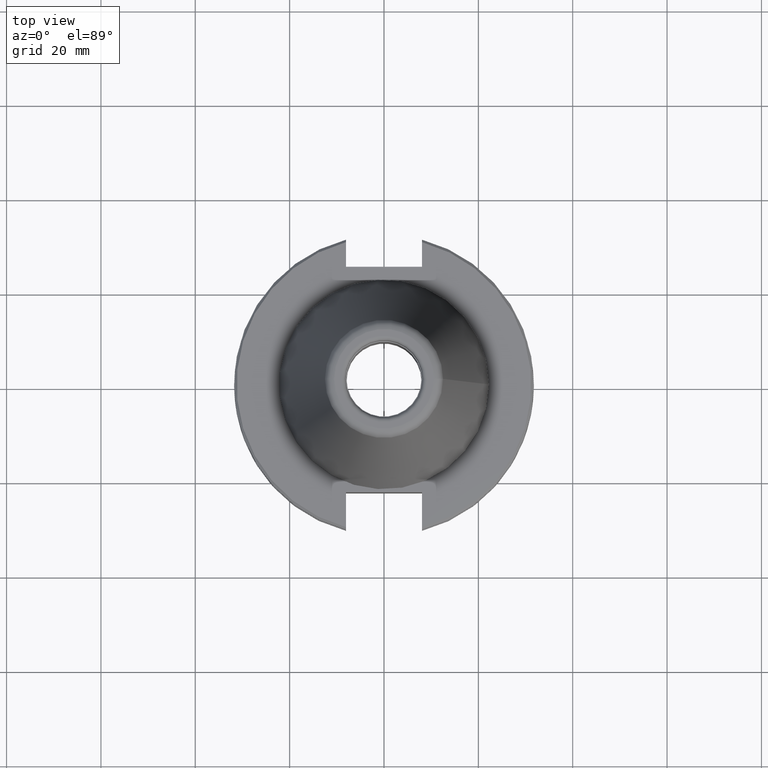
[diagram: clean part render]
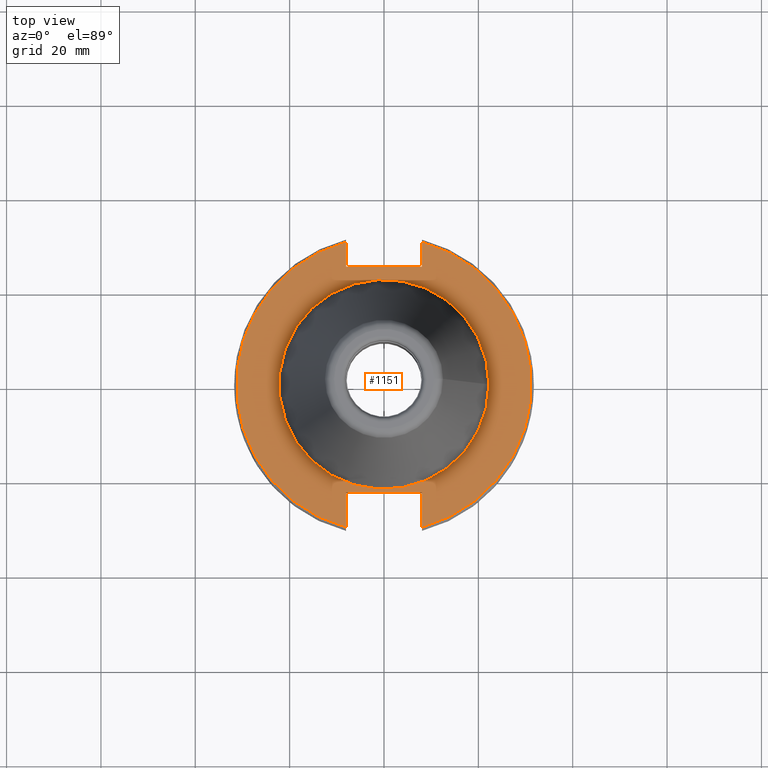
[diagram: same view with one face highlighted and labeled with its STEP entity id]
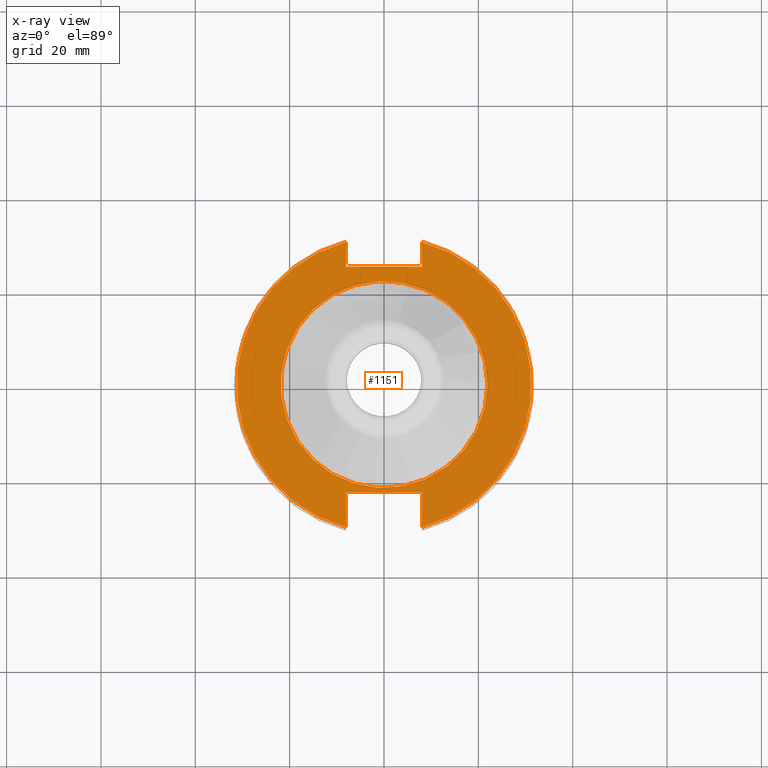
[diagram: x-ray of the same camera — body ghosted, the highlighted face saturated]
A machine part, top view. The second image highlights one B-rep face of the part: STEP entity #1151.
The next image is the same camera in x-ray: the body ghosted, the highlighted face saturated — about 0% of this face is hidden behind the body in this view.
In plain terms, the highlighted planar face has unit normal (0, 0, -1).
Its self-contained STEP definition (entity closure, byte-faithful):
#81 = CARTESIAN_POINT ( 'NONE',  ( -8.050000000000000711, 25.00000000000000000, -3.180000000000016147 ) ) ;
#83 = LINE ( 'NONE', #419, #1017 ) ;
#96 = CARTESIAN_POINT ( 'NONE',  ( -8.050000000000000711, -30.22123632480973043, -3.180000000000016147 ) ) ;
#100 = VERTEX_POINT ( 'NONE', #1210 ) ;
#103 = VERTEX_POINT ( 'NONE', #96 ) ;
#116 = LINE ( 'NONE', #672, #1841 ) ;
#158 = CIRCLE ( 'NONE', #746, 21.92500000000000071 ) ;
#199 = AXIS2_PLACEMENT_3D ( 'NONE', #1705, #1060, #899 ) ;
#237 = ORIENTED_EDGE ( 'NONE', *, *, #1232, .T. ) ;
#239 = CARTESIAN_POINT ( 'NONE',  ( 21.92500000000000071, 0.0000000000000000000, -3.180000000000016147 ) ) ;
#303 = CARTESIAN_POINT ( 'NONE',  ( 8.050000000000000711, 30.22123632480973043, -3.180000000000016147 ) ) ;
#335 = DIRECTION ( 'NONE',  ( 1.000000000000000000, 0.0000000000000000000, 0.0000000000000000000 ) ) ;
#357 = CARTESIAN_POINT ( 'NONE',  ( 8.050000000000000711, -22.80000000000000071, -3.180000000000016147 ) ) ;
#365 = EDGE_CURVE ( 'NONE', #895, #796, #446, .T. ) ;
#419 = CARTESIAN_POINT ( 'NONE',  ( 8.050000000000002487, 31.27499999999998437, -3.180000000000016147 ) ) ;
#446 = LINE ( 'NONE', #1888, #1085 ) ;
#502 = EDGE_CURVE ( 'NONE', #103, #895, #2029, .T. ) ;
#519 = AXIS2_PLACEMENT_3D ( 'NONE', #2011, #1688, #767 ) ;
#522 = EDGE_LOOP ( 'NONE', ( #1587 ) ) ;
#577 = CARTESIAN_POINT ( 'NONE',  ( -8.050000000000000711, 31.27499999999998437, -3.180000000000016147 ) ) ;
#623 = EDGE_CURVE ( 'NONE', #785, #785, #158, .T. ) ;
#649 = LINE ( 'NONE', #903, #1282 ) ;
#672 = CARTESIAN_POINT ( 'NONE',  ( 8.050000000000000711, 31.27499999999998437, -3.180000000000016147 ) ) ;
#719 = EDGE_CURVE ( 'NONE', #1258, #1788, #116, .T. ) ;
#731 = DIRECTION ( 'NONE',  ( -1.000000000000000000, 0.0000000000000000000, 0.0000000000000000000 ) ) ;
#743 = VERTEX_POINT ( 'NONE', #1285 ) ;
#746 = AXIS2_PLACEMENT_3D ( 'NONE', #808, #1880, #1269 ) ;
#767 = DIRECTION ( 'NONE',  ( -1.000000000000000000, 0.0000000000000000000, -0.0000000000000000000 ) ) ;
#785 = VERTEX_POINT ( 'NONE', #239 ) ;
#791 = ORIENTED_EDGE ( 'NONE', *, *, #1809, .T. ) ;
#796 = VERTEX_POINT ( 'NONE', #357 ) ;
#808 = CARTESIAN_POINT ( 'NONE',  ( 0.0000000000000000000, 0.0000000000000000000, -3.180000000000016147 ) ) ;
#813 = AXIS2_PLACEMENT_3D ( 'NONE', #1406, #1878, #335 ) ;
#882 = CARTESIAN_POINT ( 'NONE',  ( 8.050000000000000711, 25.00000000000000000, -3.180000000000016147 ) ) ;
#895 = VERTEX_POINT ( 'NONE', #1785 ) ;
#899 = DIRECTION ( 'NONE',  ( 1.000000000000000000, 0.0000000000000000000, 0.0000000000000000000 ) ) ;
#903 = CARTESIAN_POINT ( 'NONE',  ( 0.0000000000000000000, 25.00000000000000000, -3.180000000000016147 ) ) ;
#955 = CIRCLE ( 'NONE', #199, 31.27499999999998437 ) ;
#1013 = EDGE_CURVE ( 'NONE', #796, #100, #83, .T. ) ;
#1017 = VECTOR ( 'NONE', #1055, 1000.000000000000000 ) ;
#1020 = ORIENTED_EDGE ( 'NONE', *, *, #365, .T. ) ;
#1055 = DIRECTION ( 'NONE',  ( -7.912572472363517554E-17, -1.000000000000000000, 0.0000000000000000000 ) ) ;
#1060 = DIRECTION ( 'NONE',  ( -0.0000000000000000000, -0.0000000000000000000, 1.000000000000000000 ) ) ;
#1085 = VECTOR ( 'NONE', #2041, 1000.000000000000000 ) ;
#1151 = ADVANCED_FACE ( 'NONE', ( #1953, #1931 ), #1682, .F. ) ;
#1182 = DIRECTION ( 'NONE',  ( -7.912572472363517554E-17, 1.000000000000000000, 0.0000000000000000000 ) ) ;
#1192 = ORIENTED_EDGE ( 'NONE', *, *, #502, .T. ) ;
#1210 = CARTESIAN_POINT ( 'NONE',  ( 8.050000000000000711, -30.22123632480973043, -3.180000000000016147 ) ) ;
#1232 = EDGE_CURVE ( 'NONE', #743, #103, #955, .T. ) ;
#1258 = VERTEX_POINT ( 'NONE', #303 ) ;
#1269 = DIRECTION ( 'NONE',  ( 1.000000000000000000, 0.0000000000000000000, 0.0000000000000000000 ) ) ;
#1282 = VECTOR ( 'NONE', #731, 1000.000000000000000 ) ;
#1285 = CARTESIAN_POINT ( 'NONE',  ( -8.050000000000000711, 30.22123632480973043, -3.180000000000016147 ) ) ;
#1338 = VECTOR ( 'NONE', #1182, 1000.000000000000000 ) ;
#1363 = DIRECTION ( 'NONE',  ( 0.0000000000000000000, 1.000000000000000000, 0.0000000000000000000 ) ) ;
#1368 = EDGE_CURVE ( 'NONE', #100, #1258, #1392, .T. ) ;
#1392 = CIRCLE ( 'NONE', #813, 31.27499999999998437 ) ;
#1406 = CARTESIAN_POINT ( 'NONE',  ( 0.0000000000000000000, 0.0000000000000000000, -3.180000000000016147 ) ) ;
#1413 = EDGE_CURVE ( 'NONE', #1788, #1796, #649, .T. ) ;
#1528 = ORIENTED_EDGE ( 'NONE', *, *, #1013, .T. ) ;
#1542 = VECTOR ( 'NONE', #1363, 1000.000000000000000 ) ;
#1587 = ORIENTED_EDGE ( 'NONE', *, *, #623, .F. ) ;
#1591 = CARTESIAN_POINT ( 'NONE',  ( -8.050000000000002487, 31.27499999999998437, -3.180000000000016147 ) ) ;
#1608 = DIRECTION ( 'NONE',  ( 0.0000000000000000000, -1.000000000000000000, 0.0000000000000000000 ) ) ;
#1617 = ORIENTED_EDGE ( 'NONE', *, *, #719, .T. ) ;
#1682 = PLANE ( 'NONE',  #519 ) ;
#1688 = DIRECTION ( 'NONE',  ( 0.0000000000000000000, 0.0000000000000000000, -1.000000000000000000 ) ) ;
#1705 = CARTESIAN_POINT ( 'NONE',  ( 0.0000000000000000000, 0.0000000000000000000, -3.180000000000016147 ) ) ;
#1746 = EDGE_LOOP ( 'NONE', ( #1824, #791, #237, #1192, #1020, #1528, #1845, #1617 ) ) ;
#1785 = CARTESIAN_POINT ( 'NONE',  ( -8.050000000000000711, -22.80000000000000071, -3.180000000000016147 ) ) ;
#1788 = VERTEX_POINT ( 'NONE', #882 ) ;
#1796 = VERTEX_POINT ( 'NONE', #81 ) ;
#1809 = EDGE_CURVE ( 'NONE', #1796, #743, #1859, .T. ) ;
#1824 = ORIENTED_EDGE ( 'NONE', *, *, #1413, .T. ) ;
#1841 = VECTOR ( 'NONE', #1608, 1000.000000000000000 ) ;
#1845 = ORIENTED_EDGE ( 'NONE', *, *, #1368, .T. ) ;
#1859 = LINE ( 'NONE', #577, #1542 ) ;
#1878 = DIRECTION ( 'NONE',  ( -0.0000000000000000000, -0.0000000000000000000, 1.000000000000000000 ) ) ;
#1880 = DIRECTION ( 'NONE',  ( -0.0000000000000000000, -0.0000000000000000000, 1.000000000000000000 ) ) ;
#1888 = CARTESIAN_POINT ( 'NONE',  ( 0.0000000000000000000, -22.80000000000000071, -3.180000000000016147 ) ) ;
#1931 = FACE_OUTER_BOUND ( 'NONE', #1746, .T. ) ;
#1953 = FACE_BOUND ( 'NONE', #522, .T. ) ;
#2011 = CARTESIAN_POINT ( 'NONE',  ( 0.0000000000000000000, 31.27499999999998437, -3.180000000000016147 ) ) ;
#2029 = LINE ( 'NONE', #1591, #1338 ) ;
#2041 = DIRECTION ( 'NONE',  ( 1.000000000000000000, 0.0000000000000000000, 0.0000000000000000000 ) ) ;